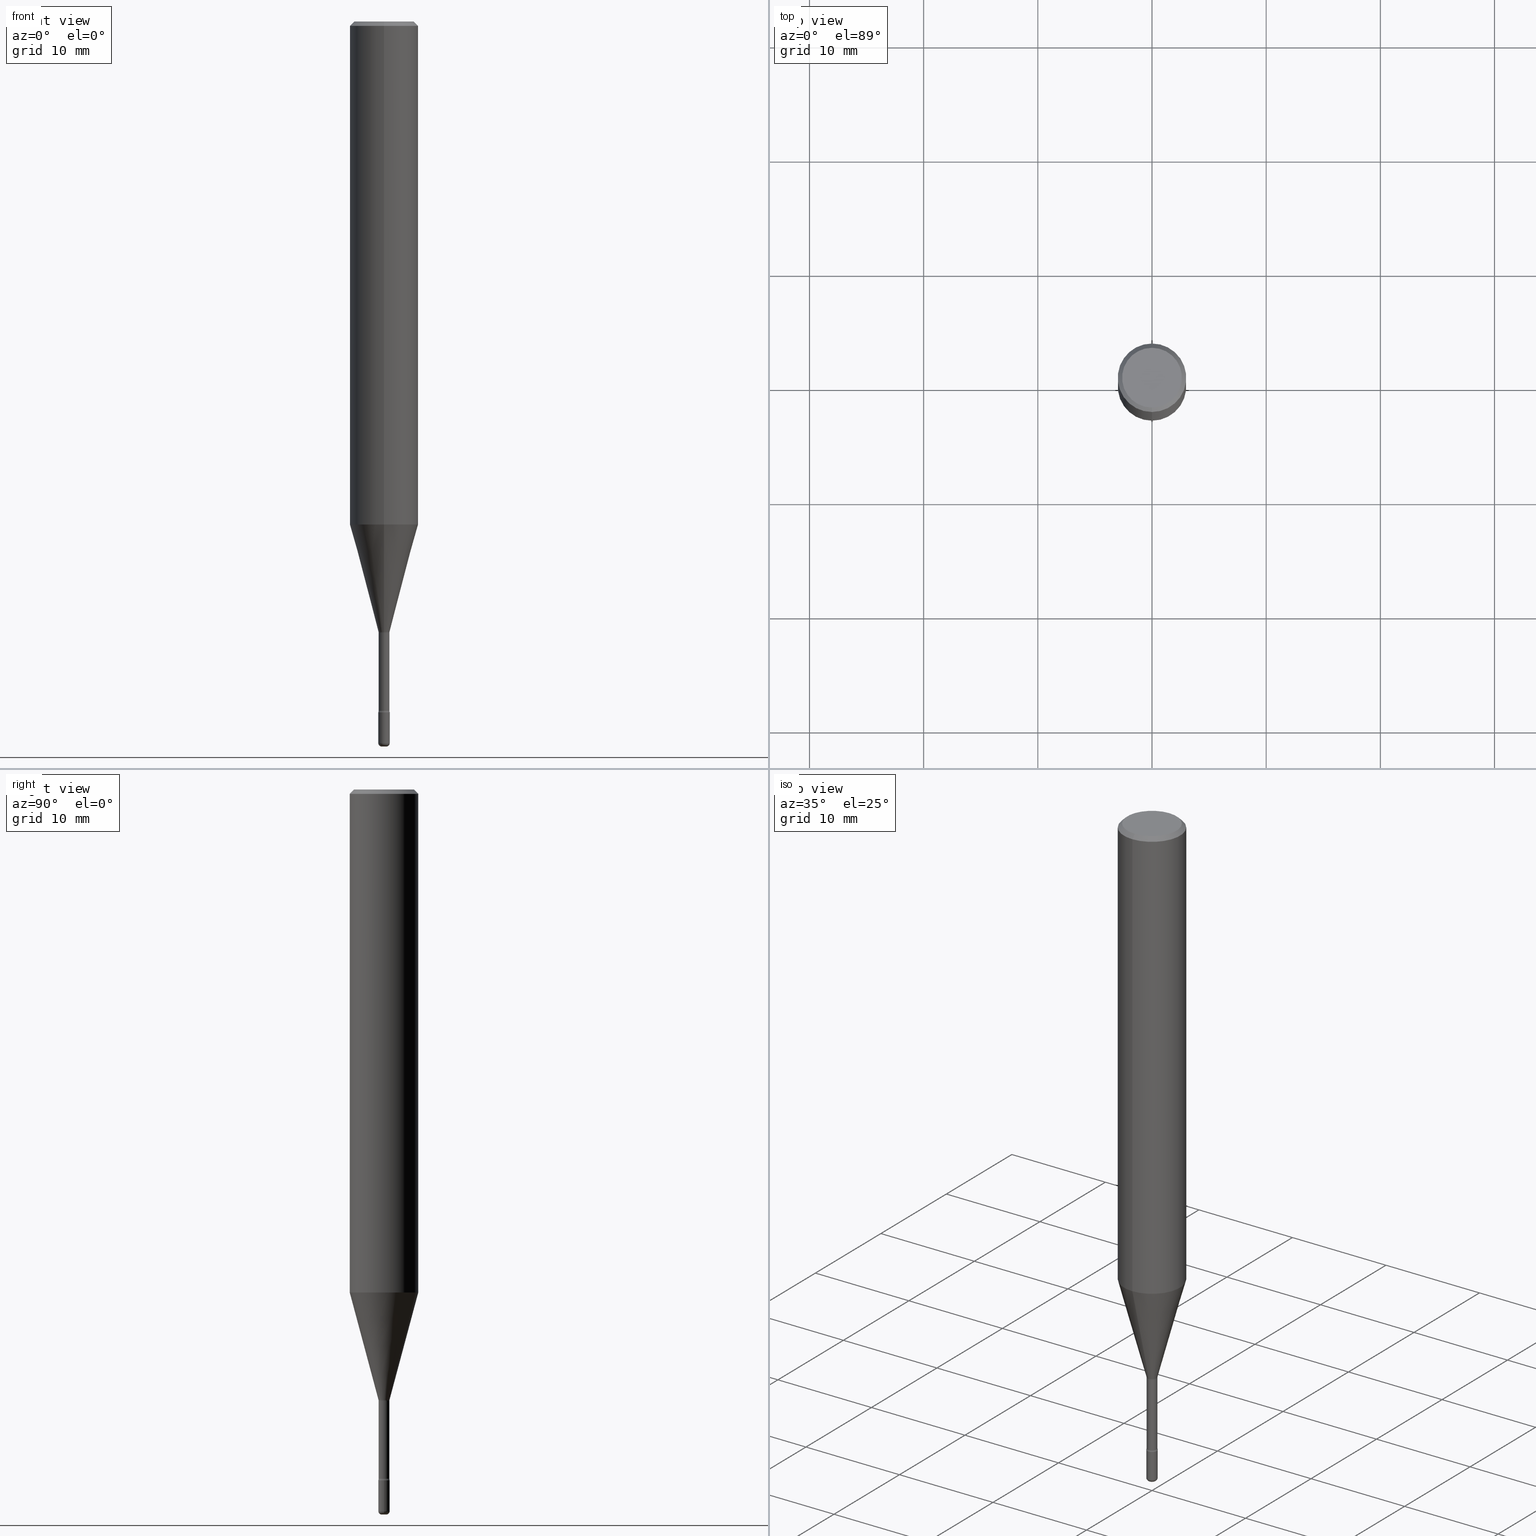
[diagram: canonical four-view strip — front | top / right | iso, engineering-drawing reading convention]
A machine part, canonical four-view strip (front | top / right | iso — engineering-drawing reading convention). The complete STEP part file that produces these views, byte-faithful:
ISO-10303-21;
HEADER;
FILE_DESCRIPTION (( 'STEP AP203' ),
    '1' );
FILE_NAME ('05331.STEP',
    '2024-03-06T20:01:58',
    ( '' ),
    ( '' ),
    'SwSTEP 2.0',
    'SolidWorks 2023',
    '' );
FILE_SCHEMA (( 'CONFIG_CONTROL_DESIGN' ));
ENDSEC;

DATA;
#1 = DIRECTION ( 'NONE',  ( 2.438088387897960049E-29, -3.491481338843145188E-15, -1.000000000000000000 ) ) ;
#2 = EDGE_CURVE ( 'NONE', #362, #465, #25, .T. ) ;
#3 = AXIS2_PLACEMENT_3D ( 'NONE', #122, #475, #239 ) ;
#4 = CARTESIAN_POINT ( 'NONE',  ( 0.01969999999999999876, -1.375643647504194363E-16, 9.606068248317991466E-31 ) ) ;
#5 = EDGE_CURVE ( 'NONE', #446, #530, #280, .T. ) ;
#6 = CARTESIAN_POINT ( 'NONE',  ( 6.084815483549856310E-29, -8.687503867309514303E-15, -2.488199999999999967 ) ) ;
#7 = CALENDAR_DATE ( 2024, 6, 3 ) ;
#8 = VECTOR ( 'NONE', #518, 39.37007874015748143 ) ;
#9 = AXIS2_PLACEMENT_3D ( 'NONE', #254, #286, #156 ) ;
#10 = CYLINDRICAL_SURFACE ( 'NONE', #107, 0.01969999999999999876 ) ;
#11 = AXIS2_PLACEMENT_3D ( 'NONE', #101, #444, #498 ) ;
#12 = CALENDAR_DATE ( 2024, 6, 3 ) ;
#13 = FACE_OUTER_BOUND ( 'NONE', #463, .T. ) ;
#14 = ADVANCED_FACE ( 'NONE', ( #255 ), #205, .T. ) ;
#15 = PERSON_AND_ORGANIZATION ( #499, #237 ) ;
#16 = CARTESIAN_POINT ( 'NONE',  ( 7.723156721521011834E-16, 0.1031000000000000111, -3.887509258146911569E-16 ) ) ;
#17 = ORIENTED_EDGE ( 'NONE', *, *, #511, .F. ) ;
#18 = CARTESIAN_POINT ( 'NONE',  ( 8.391509709326781971E-16, 0.1180999999999999966, 6.569755868572347380E-17 ) ) ;
#19 = CIRCLE ( 'NONE', #295, 0.01850000000000006500 ) ;
#20 = CARTESIAN_POINT ( 'NONE',  ( 0.007899999999999995567, -8.742669272463236971E-15, -2.488199999999999967 ) ) ;
#21 = EDGE_CURVE ( 'NONE', #236, #387, #49, .T. ) ;
#22 = DIRECTION ( 'NONE',  ( -6.982962677686265922E-15, -1.000000000000000000, 4.626330217890369336E-15 ) ) ;
#23 = ORIENTED_EDGE ( 'NONE', *, *, #443, .T. ) ;
#24 = CARTESIAN_POINT ( 'NONE',  ( 7.021496770469800463E-46, -1.005216981103814698E-31, -2.875135659208835554E-17 ) ) ;
#25 = CIRCLE ( 'NONE', #414, 0.01500000000000002720 ) ;
#26 = CIRCLE ( 'NONE', #305, 0.1180999999999999966 ) ;
#27 = ORIENTED_EDGE ( 'NONE', *, *, #374, .F. ) ;
#28 = DIRECTION ( 'NONE',  ( -6.982962677686265133E-15, -1.000000000000000000, 0.000000000000000000 ) ) ;
#29 = FACE_OUTER_BOUND ( 'NONE', #482, .T. ) ;
#30 = ORIENTED_EDGE ( 'NONE', *, *, #365, .F. ) ;
#31 = EDGE_CURVE ( 'NONE', #529, #159, #429, .T. ) ;
#32 = ORIENTED_EDGE ( 'NONE', *, *, #311, .T. ) ;
#33 = CARTESIAN_POINT ( 'NONE',  ( 5.810037713031908457E-29, -8.296475434781729585E-15, -2.376021224617320904 ) ) ;
#34 = EDGE_LOOP ( 'NONE', ( #570, #545 ) ) ;
#35 = PRODUCT_RELATED_PRODUCT_CATEGORY ( 'detail', '', ( #198 ) ) ;
#36 = ORIENTED_EDGE ( 'NONE', *, *, #200, .F. ) ;
#37 = CARTESIAN_POINT ( 'NONE',  ( 5.155720227609348946E-29, -7.361002077583396325E-15, -2.108274787463811251 ) ) ;
#38 = DIRECTION ( 'NONE',  ( -2.445280224282367565E-29, 3.491751398861325958E-15, 1.000000000000000000 ) ) ;
#39 = EDGE_LOOP ( 'NONE', ( #369, #478, #275, #245 ) ) ;
#40 = AXIS2_PLACEMENT_3D ( 'NONE', #207, #329, #125 ) ;
#41 = DIRECTION ( 'NONE',  ( -6.982962677686265922E-15, -1.000000000000000000, 3.491751398861325958E-15 ) ) ;
#42 = AXIS2_PLACEMENT_3D ( 'NONE', #6, #526, #43 ) ;
#43 = DIRECTION ( 'NONE',  ( 1.000000000000000000, -6.982962677686306154E-15, 4.883557194083126353E-29 ) ) ;
#44 = DIRECTION ( 'NONE',  ( -2.445280224282367845E-29, 3.491751398861325958E-15, 1.000000000000000000 ) ) ;
#45 = CARTESIAN_POINT ( 'NONE',  ( 5.145829368748516646E-29, -7.348015461868996732E-15, -2.104392501787273329 ) ) ;
#46 = CARTESIAN_POINT ( 'NONE',  ( -1.169113584055446105E-44, 1.669184350826100908E-30, 4.780733988912460139E-16 ) ) ;
#47 = EDGE_CURVE ( 'NONE', #525, #529, #304, .T. ) ;
#48 = LINE ( 'NONE', #85, #100 ) ;
#49 = CIRCLE ( 'NONE', #104, 0.01969999999999999876 ) ;
#50 = CIRCLE ( 'NONE', #361, 0.01850000000000006500 ) ;
#51 = DIRECTION ( 'NONE',  ( -6.982962677686263555E-15, -1.000000000000000000, 0.000000000000000000 ) ) ;
#52 = ADVANCED_FACE ( 'NONE', ( #468 ), #337, .T. ) ;
#53 = SHAPE_DEFINITION_REPRESENTATION ( #111, #138 ) ;
#54 = DIRECTION ( 'NONE',  ( -2.445280224282367845E-29, 3.491751398861325958E-15, 1.000000000000000000 ) ) ;
#55 = ORIENTED_EDGE ( 'NONE', *, *, #153, .F. ) ;
#56 = APPROVAL_STATUS ( 'not_yet_approved' ) ;
#57 = AXIS2_PLACEMENT_3D ( 'NONE', #204, #249, #424 ) ;
#58 = FACE_OUTER_BOUND ( 'NONE', #77, .T. ) ;
#59 = CONICAL_SURFACE ( 'NONE', #215, 0.1180999999999999966, 0.7853981633974480570 ) ;
#60 = COORDINATED_UNIVERSAL_TIME_OFFSET ( 5, 0, .BEHIND. ) ;
#61 = DIRECTION ( 'NONE',  ( 1.000000000000000000, -6.982962677686265922E-15, 4.876176775795935793E-29 ) ) ;
#62 = DATE_AND_TIME ( #398, #182 ) ;
#63 = ORIENTED_EDGE ( 'NONE', *, *, #222, .T. ) ;
#64 = APPROVAL_ROLE ( '' ) ;
#65 = TOROIDAL_SURFACE ( 'NONE', #183, 0.007899999999999995567, 0.01180000000000006738 ) ;
#66 = ORIENTED_EDGE ( 'NONE', *, *, #524, .T. ) ;
#67 = CARTESIAN_POINT ( 'NONE',  ( -1.169113584055446105E-44, 1.669184350826100908E-30, 4.780733988912460139E-16 ) ) ;
#68 = EDGE_LOOP ( 'NONE', ( #17, #411, #23, #454 ) ) ;
#69 = DIRECTION ( 'NONE',  ( -2.445280224282367565E-29, 3.491751398861325958E-15, 1.000000000000000000 ) ) ;
#70 = EDGE_CURVE ( 'NONE', #525, #120, #26, .T. ) ;
#71 = ORIENTED_EDGE ( 'NONE', *, *, #448, .F. ) ;
#72 = DIRECTION ( 'NONE',  ( -6.982962677686265133E-15, -1.000000000000000000, 0.000000000000000000 ) ) ;
#73 = ORIENTED_EDGE ( 'NONE', *, *, #294, .T. ) ;
#74 = TOROIDAL_SURFACE ( 'NONE', #96, 0.03349999999999999506, 0.01500000000000002373 ) ;
#75 = ORIENTED_EDGE ( 'NONE', *, *, #491, .F. ) ;
#76 = FACE_OUTER_BOUND ( 'NONE', #334, .T. ) ;
#77 = EDGE_LOOP ( 'NONE', ( #285, #206, #339, #243 ) ) ;
#78 = PRODUCT_DEFINITION ( 'UNKNOWN', '', #130, #345 ) ;
#79 = VERTEX_POINT ( 'NONE', #523 ) ;
#80 = DIRECTION ( 'NONE',  ( -2.445280224282367285E-29, 3.491751398861325958E-15, 1.000000000000000000 ) ) ;
#81 = PLANE ( 'NONE',  #484 ) ;
#82 = ORIENTED_EDGE ( 'NONE', *, *, #142, .F. ) ;
#83 = ORIENTED_EDGE ( 'NONE', *, *, #392, .T. ) ;
#84 = DIRECTION ( 'NONE',  ( -2.445280224282367565E-29, 3.491751398861325958E-15, 1.000000000000000000 ) ) ;
#85 = CARTESIAN_POINT ( 'NONE',  ( -1.291848095371961205E-16, -0.01850000000000003031, 5.426707997701807132E-16 ) ) ;
#86 = DIRECTION ( 'NONE',  ( -2.445280224282367565E-29, 3.491751398861325958E-15, 1.000000000000000000 ) ) ;
#87 = EDGE_LOOP ( 'NONE', ( #55, #540, #427, #36 ) ) ;
#88 = CIRCLE ( 'NONE', #354, 0.01499999999999997169 ) ;
#89 = EDGE_CURVE ( 'NONE', #530, #387, #213, .T. ) ;
#90 = AXIS2_PLACEMENT_3D ( 'NONE', #377, #221, #486 ) ;
#91 = FACE_OUTER_BOUND ( 'NONE', #34, .T. ) ;
#92 = DATE_TIME_ROLE ( 'classification_date' ) ;
#93 = LOCAL_TIME ( 15, 1, 58.00000000000000000, #496 ) ;
#94 = DIRECTION ( 'NONE',  ( 1.000000000000000000, -6.982962677686372418E-15, 0.000000000000000000 ) ) ;
#95 = ADVANCED_FACE ( 'NONE', ( #341 ), #347, .T. ) ;
#96 = AXIS2_PLACEMENT_3D ( 'NONE', #37, #384, #569 ) ;
#97 = DIRECTION ( 'NONE',  ( 6.982962677686265922E-15, 1.000000000000000000, -3.487819265831411744E-15 ) ) ;
#98 = SECURITY_CLASSIFICATION ( '', '', #278 ) ;
#99 = EDGE_CURVE ( 'NONE', #512, #465, #175, .T. ) ;
#100 = VECTOR ( 'NONE', #136, 39.37007874015748143 ) ;
#101 = CARTESIAN_POINT ( 'NONE',  ( 5.155322645138369044E-29, -7.361571438310827097E-15, -2.108274787463811251 ) ) ;
#102 = ORIENTED_EDGE ( 'NONE', *, *, #552, .T. ) ;
#103 = DIRECTION ( 'NONE',  ( -2.445280224282367565E-29, 3.491751398861325958E-15, 1.000000000000000000 ) ) ;
#104 = AXIS2_PLACEMENT_3D ( 'NONE', #131, #421, #127 ) ;
#105 = DIRECTION ( 'NONE',  ( 6.982962677686265922E-15, 1.000000000000000000, -3.491751398861325958E-15 ) ) ;
#106 = VECTOR ( 'NONE', #116, 39.37007874015748143 ) ;
#107 = AXIS2_PLACEMENT_3D ( 'NONE', #318, #492, #310 ) ;
#108 = DIRECTION ( 'NONE',  ( -6.982962677686265922E-15, -1.000000000000000000, 0.000000000000000000 ) ) ;
#109 = DIRECTION ( 'NONE',  ( 2.445280224282367285E-29, -3.491751398861325958E-15, -1.000000000000000000 ) ) ;
#110 = ORIENTED_EDGE ( 'NONE', *, *, #477, .T. ) ;
#111 = PRODUCT_DEFINITION_SHAPE ( 'NONE', 'NONE',  #78 ) ;
#112 = DIRECTION ( 'NONE',  ( -6.982962677686265133E-15, -1.000000000000000000, 0.000000000000000000 ) ) ;
#113 = DIRECTION ( 'NONE',  ( -2.445280224282367565E-29, 3.491751398861325958E-15, 1.000000000000000000 ) ) ;
#114 = DIRECTION ( 'NONE',  ( 7.105427357601001859E-15, 1.000000000000000000, -3.491481338843145583E-15 ) ) ;
#115 = ORIENTED_EDGE ( 'NONE', *, *, #461, .F. ) ;
#116 = DIRECTION ( 'NONE',  ( 4.937700262164546464E-15, 0.7071067811865449082, -0.7071067811865501263 ) ) ;
#117 = DIRECTION ( 'NONE',  ( -2.445468806185136597E-29, 3.491481338843145583E-15, 1.000000000000000000 ) ) ;
#118 = ORIENTED_EDGE ( 'NONE', *, *, #563, .F. ) ;
#119 = AXIS2_PLACEMENT_3D ( 'NONE', #274, #355, #190 ) ;
#120 = VERTEX_POINT ( 'NONE', #219 ) ;
#121 = CARTESIAN_POINT ( 'NONE',  ( -8.246878922347475723E-16, -0.1181000000000000522, -0.01499999999999961607 ) ) ;
#122 = CARTESIAN_POINT ( 'NONE',  ( 5.824412966218171832E-29, -8.317002656947792603E-15, -2.381899999999999906 ) ) ;
#123 = ORIENTED_EDGE ( 'NONE', *, *, #5, .F. ) ;
#124 = ORIENTED_EDGE ( 'NONE', *, *, #456, .F. ) ;
#125 = DIRECTION ( 'NONE',  ( -6.982962677686265133E-15, -1.000000000000000000, 0.000000000000000000 ) ) ;
#126 = DIRECTION ( 'NONE',  ( -2.445280224282367565E-29, 3.491751398861325958E-15, 1.000000000000000000 ) ) ;
#127 = DIRECTION ( 'NONE',  ( 1.000000000000000000, -6.982962677686278543E-15, 0.000000000000000000 ) ) ;
#128 = ADVANCED_FACE ( 'NONE', ( #91 ), #388, .T. ) ;
#129 = ORIENTED_EDGE ( 'NONE', *, *, #330, .F. ) ;
#130 = PRODUCT_DEFINITION_FORMATION_WITH_SPECIFIED_SOURCE ( 'ANY', '', #198, .NOT_KNOWN. ) ;
#131 = CARTESIAN_POINT ( 'NONE',  ( 5.824862149452377611E-29, -8.316359400990489234E-15, -2.381899999999999906 ) ) ;
#132 = CONICAL_SURFACE ( 'NONE', #431, 0.01901111260566398092, 0.2617993877991499629 ) ;
#133 = CIRCLE ( 'NONE', #349, 0.01901111260566398092 ) ;
#134 = APPROVAL_STATUS ( 'not_yet_approved' ) ;
#135 = EDGE_CURVE ( 'NONE', #408, #529, #290, .T. ) ;
#136 = DIRECTION ( 'NONE',  ( -2.445280224282367845E-29, 3.491751398861325958E-15, 1.000000000000000000 ) ) ;
#137 = APPROVAL ( #134, 'UNSPECIFIED' ) ;
#138 = ADVANCED_BREP_SHAPE_REPRESENTATION ( '05331', ( #528, #319, #383 ), #348 ) ;
#139 = APPROVAL_PERSON_ORGANIZATION ( #312, #494, #281 ) ;
#140 = VECTOR ( 'NONE', #44, 39.37007874015748143 ) ;
#141 = MECHANICAL_CONTEXT ( 'NONE', #242, 'mechanical' ) ;
#142 = EDGE_CURVE ( 'NONE', #328, #408, #553, .T. ) ;
#143 = APPLICATION_PROTOCOL_DEFINITION ( 'international standard', 'config_control_design', 1994, #242 ) ;
#144 = CC_DESIGN_APPROVAL ( #333, ( #130 ) ) ;
#145 = CARTESIAN_POINT ( 'NONE',  ( -1.375643647503610605E-16, -0.01970000000000829421, -2.381899999999999906 ) ) ;
#146 = CALENDAR_DATE ( 2024, 6, 3 ) ;
#147 = CIRCLE ( 'NONE', #40, 0.01969999999999999876 ) ;
#148 = DIRECTION ( 'NONE',  ( 1.000000000000000000, -6.982962677686306154E-15, 4.883557194083126353E-29 ) ) ;
#149 = ORIENTED_EDGE ( 'NONE', *, *, #89, .T. ) ;
#150 = DATE_AND_TIME ( #401, #313 ) ;
#151 = ADVANCED_FACE ( 'NONE', ( #485 ), #59, .T. ) ;
#152 = COORDINATED_UNIVERSAL_TIME_OFFSET ( 5, 0, .BEHIND. ) ;
#153 = EDGE_CURVE ( 'NONE', #362, #457, #133, .T. ) ;
#154 = LINE ( 'NONE', #322, #106 ) ;
#155 = CLOSED_SHELL ( 'NONE', ( #173, #357, #211, #368, #95, #497, #378, #488, #151, #389, #537, #308, #14, #466 ) ) ;
#156 = DIRECTION ( 'NONE',  ( 1.000000000000000000, -6.982962677686372418E-15, 0.000000000000000000 ) ) ;
#157 = AXIS2_PLACEMENT_3D ( 'NONE', #292, #522, #212 ) ;
#158 = AXIS2_PLACEMENT_3D ( 'NONE', #390, #535, #532 ) ;
#159 = VERTEX_POINT ( 'NONE', #436 ) ;
#160 = DIRECTION ( 'NONE',  ( 1.000000000000000000, -6.982962677686229634E-15, 0.000000000000000000 ) ) ;
#161 =( NAMED_UNIT ( * ) SI_UNIT ( $, .STERADIAN. ) SOLID_ANGLE_UNIT ( ) );
#162 = CC_DESIGN_PERSON_AND_ORGANIZATION_ASSIGNMENT ( #356, #407, ( #130 ) ) ;
#163 = EDGE_LOOP ( 'NONE', ( #500, #344, #63, #71 ) ) ;
#164 = DIRECTION ( 'NONE',  ( -6.982962677686265922E-15, -1.000000000000000000, 3.491751398861325958E-15 ) ) ;
#165 = ORIENTED_EDGE ( 'NONE', *, *, #31, .F. ) ;
#166 = CARTESIAN_POINT ( 'NONE',  ( 5.155322645138369044E-29, -7.361571438310827097E-15, -2.108274787463811251 ) ) ;
#167 = DIRECTION ( 'NONE',  ( -6.982962677686267499E-15, -1.000000000000000000, 0.000000000000000000 ) ) ;
#168 = DIRECTION ( 'NONE',  ( -6.982962677686265922E-15, -1.000000000000000000, 3.487819265831411744E-15 ) ) ;
#169 = VECTOR ( 'NONE', #515, 39.37007874015748854 ) ;
#170 = ORIENTED_EDGE ( 'NONE', *, *, #400, .T. ) ;
#171 = CARTESIAN_POINT ( 'NONE',  ( 1.399769189447978324E-16, 0.01969999999999166515, -2.381899999999999906 ) ) ;
#172 = CARTESIAN_POINT ( 'NONE',  ( -0.01969999999999999876, 1.399769189447397278E-16, -9.690302127802162501E-31 ) ) ;
#173 = ADVANCED_FACE ( 'NONE', ( #220 ), #397, .F. ) ;
#174 = EDGE_LOOP ( 'NONE', ( #170, #149, #565, #375 ) ) ;
#175 = LINE ( 'NONE', #433, #140 ) ;
#176 = DIRECTION ( 'NONE',  ( -1.000000000000000000, 6.982962677686265922E-15, -4.876176775795935793E-29 ) ) ;
#177 = EDGE_CURVE ( 'NONE', #79, #342, #48, .T. ) ;
#178 = CIRCLE ( 'NONE', #3, 0.01969999999999999876 ) ;
#179 = TOROIDAL_SURFACE ( 'NONE', #42, 0.007899999999999995567, 0.01180000000000006738 ) ;
#180 = PERSON_AND_ORGANIZATION ( #499, #237 ) ;
#181 = DIRECTION ( 'NONE',  ( -2.445468806185136877E-29, 3.491481338843145188E-15, 1.000000000000000000 ) ) ;
#182 = LOCAL_TIME ( 15, 1, 58.00000000000000000, #194 ) ;
#183 = AXIS2_PLACEMENT_3D ( 'NONE', #238, #270, #148 ) ;
#184 = DIRECTION ( 'NONE',  ( 7.105427357600997914E-15, 1.000000000000000000, 0.000000000000000000 ) ) ;
#185 = ORIENTED_EDGE ( 'NONE', *, *, #21, .T. ) ;
#186 = DATE_AND_TIME ( #12, #346 ) ;
#187 = CARTESIAN_POINT ( 'NONE',  ( 6.084815483549856310E-29, -8.687503867309514303E-15, -2.488199999999999967 ) ) ;
#188 = EDGE_CURVE ( 'NONE', #216, #446, #460, .T. ) ;
#189 = VECTOR ( 'NONE', #54, 39.37007874015748143 ) ;
#190 = DIRECTION ( 'NONE',  ( -6.982962677686266711E-15, -1.000000000000000000, 3.491751398861325564E-15 ) ) ;
#191 = ORIENTED_EDGE ( 'NONE', *, *, #365, .T. ) ;
#192 = DATE_TIME_ROLE ( 'creation_date' ) ;
#193 = CARTESIAN_POINT ( 'NONE',  ( -8.102248135368174406E-16, -0.1181000000000000522, -0.01499999999999961607 ) ) ;
#194 = COORDINATED_UNIVERSAL_TIME_OFFSET ( 5, 0, .BEHIND. ) ;
#195 = CYLINDRICAL_SURFACE ( 'NONE', #450, 0.1180999999999999966 ) ;
#196 =( NAMED_UNIT ( * ) PLANE_ANGLE_UNIT ( ) SI_UNIT ( $, .RADIAN. ) );
#197 = ORIENTED_EDGE ( 'NONE', *, *, #47, .T. ) ;
#198 = PRODUCT ( '05331', '05331', '', ( #141 ) ) ;
#199 = CARTESIAN_POINT ( 'NONE',  ( 4.871165252697454148E-16, 0.01901111260565663263, -2.104392501787273329 ) ) ;
#200 = EDGE_CURVE ( 'NONE', #457, #342, #533, .T. ) ;
#201 = AXIS2_PLACEMENT_3D ( 'NONE', #343, #218, #432 ) ;
#202 = EDGE_LOOP ( 'NONE', ( #566, #469, #508, #291 ) ) ;
#203 = CARTESIAN_POINT ( 'NONE',  ( 3.667920336423558407E-31, -5.237627098291998527E-17, -0.01500000000000002720 ) ) ;
#204 = CARTESIAN_POINT ( 'NONE',  ( 5.824862149452377611E-29, -8.316359400990489234E-15, -2.381899999999999906 ) ) ;
#205 = CYLINDRICAL_SURFACE ( 'NONE', #223, 0.01850000000000003031 ) ;
#206 = ORIENTED_EDGE ( 'NONE', *, *, #524, .F. ) ;
#207 = CARTESIAN_POINT ( 'NONE',  ( 5.824412966218171832E-29, -8.317002656947792603E-15, -2.381899999999999906 ) ) ;
#208 = CARTESIAN_POINT ( 'NONE',  ( -2.339292497024320265E-16, -0.03350000000000832867, -2.376021224617320904 ) ) ;
#209 = EDGE_LOOP ( 'NONE', ( #422, #379, #256, #252 ) ) ;
#210 = ORIENTED_EDGE ( 'NONE', *, *, #258, .T. ) ;
#211 = ADVANCED_FACE ( 'NONE', ( #226 ), #228, .F. ) ;
#212 = DIRECTION ( 'NONE',  ( 6.982962677686265922E-15, 1.000000000000000000, -3.487819265831411744E-15 ) ) ;
#213 = LINE ( 'NONE', #172, #324 ) ;
#214 = CIRCLE ( 'NONE', #57, 0.01969999999999999876 ) ;
#215 = AXIS2_PLACEMENT_3D ( 'NONE', #350, #439, #97 ) ;
#216 = VERTEX_POINT ( 'NONE', #393 ) ;
#217 = CARTESIAN_POINT ( 'NONE',  ( 7.021496770469800463E-46, -1.005216981103814698E-31, -2.875135659208835554E-17 ) ) ;
#218 = DIRECTION ( 'NONE',  ( -2.445280224282367565E-29, 3.491751398861325958E-15, 1.000000000000000000 ) ) ;
#219 = CARTESIAN_POINT ( 'NONE',  ( 8.391509709327204011E-16, 0.1180999999999939182, -1.734587739566141096 ) ) ;
#220 = FACE_OUTER_BOUND ( 'NONE', #87, .T. ) ;
#221 = DIRECTION ( 'NONE',  ( -2.445468806185136597E-29, 3.491481338843145583E-15, 1.000000000000000000 ) ) ;
#222 = EDGE_CURVE ( 'NONE', #287, #236, #340, .T. ) ;
#223 = AXIS2_PLACEMENT_3D ( 'NONE', #46, #250, #425 ) ;
#224 = CIRCLE ( 'NONE', #521, 0.1031000000000000111 ) ;
#225 = CC_DESIGN_PERSON_AND_ORGANIZATION_ASSIGNMENT ( #458, #549, ( #78 ) ) ;
#226 = FACE_OUTER_BOUND ( 'NONE', #548, .T. ) ;
#227 = CIRCLE ( 'NONE', #9, 0.007899999999999997302 ) ;
#228 = TOROIDAL_SURFACE ( 'NONE', #201, 0.03350000000000002975, 0.01499999999999996822 ) ;
#229 = DIRECTION ( 'NONE',  ( 1.000000000000000000, -7.105427357601001070E-15, 4.926318815823450324E-29 ) ) ;
#230 = APPLICATION_PROTOCOL_DEFINITION ( 'international standard', 'config_control_design', 1994, #426 ) ;
#231 = CARTESIAN_POINT ( 'NONE',  ( 2.380318164796918536E-16, 0.03349999999999173778, -2.376021224617320904 ) ) ;
#232 = ADVANCED_FACE ( 'NONE', ( #351 ), #179, .T. ) ;
#233 = DIMENSIONAL_EXPONENTS ( 1.000000000000000000, 0.000000000000000000, 0.000000000000000000, 0.000000000000000000, 0.000000000000000000, 0.000000000000000000, 0.000000000000000000 ) ;
#234 = APPROVAL_DATE_TIME ( #62, #494 ) ;
#235 = CC_DESIGN_PERSON_AND_ORGANIZATION_ASSIGNMENT ( #15, #364, ( #98 ) ) ;
#236 = VERTEX_POINT ( 'NONE', #394 ) ;
#237 = ORGANIZATION ( 'UNSPECIFIED', 'UNSPECIFIED', '' ) ;
#238 = CARTESIAN_POINT ( 'NONE',  ( 6.084815483549856310E-29, -8.687503867309514303E-15, -2.488199999999999967 ) ) ;
#239 = DIRECTION ( 'NONE',  ( -6.982962677686265133E-15, -1.000000000000000000, 0.000000000000000000 ) ) ;
#240 = ORIENTED_EDGE ( 'NONE', *, *, #177, .F. ) ;
#241 = FACE_OUTER_BOUND ( 'NONE', #493, .T. ) ;
#242 = APPLICATION_CONTEXT ( 'configuration controlled 3d designs of mechanical parts and assemblies' ) ;
#243 = ORIENTED_EDGE ( 'NONE', *, *, #374, .T. ) ;
#244 = DIRECTION ( 'NONE',  ( -2.445280224282367565E-29, 3.491751398861325958E-15, 1.000000000000000000 ) ) ;
#245 = ORIENTED_EDGE ( 'NONE', *, *, #443, .F. ) ;
#246 = CONICAL_SURFACE ( 'NONE', #157, 0.1180999999999999966, 0.7853981633974480570 ) ;
#247 = AXIS2_PLACEMENT_3D ( 'NONE', #20, #360, #404 ) ;
#248 = ORIENTED_EDGE ( 'NONE', *, *, #294, .F. ) ;
#249 = DIRECTION ( 'NONE',  ( -2.445468806185136597E-29, 3.491481338843145583E-15, 1.000000000000000000 ) ) ;
#250 = DIRECTION ( 'NONE',  ( -2.445280224282367565E-29, 3.491751398861325958E-15, 1.000000000000000000 ) ) ;
#251 = ADVANCED_FACE ( 'NONE', ( #316 ), #10, .T. ) ;
#252 = ORIENTED_EDGE ( 'NONE', *, *, #539, .F. ) ;
#253 = PLANE ( 'NONE',  #567 ) ;
#254 = CARTESIAN_POINT ( 'NONE',  ( 6.113672015462842613E-29, -8.728703347107864943E-15, -2.500000000000000000 ) ) ;
#255 = FACE_OUTER_BOUND ( 'NONE', #209, .T. ) ;
#256 = ORIENTED_EDGE ( 'NONE', *, *, #177, .T. ) ;
#257 = CARTESIAN_POINT ( 'NONE',  ( -8.246878922347057627E-16, -0.1181000000000060751, -1.734587739566140430 ) ) ;
#258 = EDGE_CURVE ( 'NONE', #216, #287, #434, .T. ) ;
#259 = DIRECTION ( 'NONE',  ( -2.445280224282367565E-29, 3.491751398861325958E-15, 1.000000000000000000 ) ) ;
#260 = AXIS2_PLACEMENT_3D ( 'NONE', #502, #453, #61 ) ;
#261 = ORIENTED_EDGE ( 'NONE', *, *, #135, .F. ) ;
#262 = DIRECTION ( 'NONE',  ( -6.982962677686265922E-15, -1.000000000000000000, 3.491751398861325958E-15 ) ) ;
#263 = VERTEX_POINT ( 'NONE', #145 ) ;
#264 = UNCERTAINTY_MEASURE_WITH_UNIT (LENGTH_MEASURE( 1.000000000000000082E-05 ), #555, 'distance_accuracy_value', 'NONE');
#265 = DIRECTION ( 'NONE',  ( -2.445280224282367565E-29, 3.491751398861325958E-15, 1.000000000000000000 ) ) ;
#266 = DATE_AND_TIME ( #7, #503 ) ;
#267 = CARTESIAN_POINT ( 'NONE',  ( -2.339292497024383374E-16, -0.03350000000000735723, -2.108274787463811251 ) ) ;
#268 = CIRCLE ( 'NONE', #338, 0.1180999999999999966 ) ;
#269 = APPROVAL_STATUS ( 'not_yet_approved' ) ;
#270 = DIRECTION ( 'NONE',  ( -2.445468806185136597E-29, 3.491481338843145583E-15, 1.000000000000000000 ) ) ;
#271 = AXIS2_PLACEMENT_3D ( 'NONE', #203, #366, #550 ) ;
#272 = DIRECTION ( 'NONE',  ( 1.000000000000000000, 0.000000000000000000, 0.000000000000000000 ) ) ;
#273 = VECTOR ( 'NONE', #181, 39.37007874015748143 ) ;
#274 = CARTESIAN_POINT ( 'NONE',  ( 5.810485787635465130E-29, -8.295833766446612990E-15, -2.376021224617320904 ) ) ;
#275 = ORIENTED_EDGE ( 'NONE', *, *, #70, .F. ) ;
#276 = ADVANCED_FACE ( 'NONE', ( #13 ), #320, .T. ) ;
#277 = ORIENTED_EDGE ( 'NONE', *, *, #552, .F. ) ;
#278 = SECURITY_CLASSIFICATION_LEVEL ( 'unclassified' ) ;
#279 = APPROVAL_DATE_TIME ( #266, #137 ) ;
#280 = CIRCLE ( 'NONE', #353, 0.01180000000000006738 ) ;
#281 = APPROVAL_ROLE ( '' ) ;
#282 = CIRCLE ( 'NONE', #459, 0.01901111260566398092 ) ;
#283 = CARTESIAN_POINT ( 'NONE',  ( -1.327538897865910147E-16, -0.01901111260567132921, -2.104392501787273329 ) ) ;
#284 = ADVANCED_FACE ( 'NONE', ( #395 ), #65, .T. ) ;
#285 = ORIENTED_EDGE ( 'NONE', *, *, #311, .F. ) ;
#286 = DIRECTION ( 'NONE',  ( -2.445468806185136597E-29, 3.491481338843145583E-15, 1.000000000000000000 ) ) ;
#287 = VERTEX_POINT ( 'NONE', #449 ) ;
#288 = FACE_OUTER_BOUND ( 'NONE', #476, .T. ) ;
#289 = DIRECTION ( 'NONE',  ( -1.807323732225328167E-15, -0.2588190451025179084, 0.9659258262890690894 ) ) ;
#290 = LINE ( 'NONE', #193, #416 ) ;
#291 = ORIENTED_EDGE ( 'NONE', *, *, #258, .F. ) ;
#292 = CARTESIAN_POINT ( 'NONE',  ( 3.667920336423558407E-31, -5.237627098291998527E-17, -0.01500000000000002720 ) ) ;
#293 = EDGE_LOOP ( 'NONE', ( #326, #303, #300, #73 ) ) ;
#294 = EDGE_CURVE ( 'NONE', #342, #465, #507, .T. ) ;
#295 = AXIS2_PLACEMENT_3D ( 'NONE', #33, #244, #420 ) ;
#296 = ORIENTED_EDGE ( 'NONE', *, *, #306, .T. ) ;
#297 = CC_DESIGN_DATE_AND_TIME_ASSIGNMENT ( #315, #92, ( #98 ) ) ;
#298 = DIRECTION ( 'NONE',  ( -6.982962677686265133E-15, -1.000000000000000000, 3.491751398861325958E-15 ) ) ;
#299 = EDGE_LOOP ( 'NONE', ( #406, #191 ) ) ;
#300 = ORIENTED_EDGE ( 'NONE', *, *, #200, .T. ) ;
#301 = DIRECTION ( 'NONE',  ( -2.445280224282367565E-29, 3.491751398861325958E-15, 1.000000000000000000 ) ) ;
#302 = CARTESIAN_POINT ( 'NONE',  ( 4.241553096843737534E-29, -6.056749166077777869E-15, -1.734587739566140652 ) ) ;
#303 = ORIENTED_EDGE ( 'NONE', *, *, #321, .F. ) ;
#304 = LINE ( 'NONE', #527, #8 ) ;
#305 = AXIS2_PLACEMENT_3D ( 'NONE', #302, #259, #385 ) ;
#306 = EDGE_CURVE ( 'NONE', #120, #159, #541, .T. ) ;
#307 = CARTESIAN_POINT ( 'NONE',  ( 6.113672015462842613E-29, -8.728703347107864943E-15, -2.500000000000000000 ) ) ;
#308 = ADVANCED_FACE ( 'NONE', ( #58 ), #442, .F. ) ;
#309 = CIRCLE ( 'NONE', #396, 0.01969999999999999876 ) ;
#310 = DIRECTION ( 'NONE',  ( 1.000000000000000000, -6.982962677686265922E-15, 4.876176775795935232E-29 ) ) ;
#311 = EDGE_CURVE ( 'NONE', #512, #473, #88, .T. ) ;
#312 = PERSON_AND_ORGANIZATION ( #499, #237 ) ;
#313 = LOCAL_TIME ( 15, 1, 58.00000000000000000, #60 ) ;
#314 = CIRCLE ( 'NONE', #371, 0.01499999999999996302 ) ;
#315 = DATE_AND_TIME ( #146, #93 ) ;
#316 = FACE_OUTER_BOUND ( 'NONE', #163, .T. ) ;
#317 = ORIENTED_EDGE ( 'NONE', *, *, #563, .T. ) ;
#318 = CARTESIAN_POINT ( 'NONE',  ( 0.000000000000000000, 0.000000000000000000, 0.000000000000000000 ) ) ;
#319 = MANIFOLD_SOLID_BREP ( 'Body-Move/Copy2[2]', #155 ) ;
#320 = PLANE ( 'NONE',  #260 ) ;
#321 = EDGE_CURVE ( 'NONE', #457, #362, #282, .T. ) ;
#322 = CARTESIAN_POINT ( 'NONE',  ( 8.246878922347483612E-16, 0.1180999999999999411, -0.01500000000000044006 ) ) ;
#323 = AXIS2_PLACEMENT_3D ( 'NONE', #517, #117, #505 ) ;
#324 = VECTOR ( 'NONE', #560, 39.37007874015748143 ) ;
#325 = DIRECTION ( 'NONE',  ( -6.982962677686265922E-15, -1.000000000000000000, 3.491751398861325958E-15 ) ) ;
#326 = ORIENTED_EDGE ( 'NONE', *, *, #2, .F. ) ;
#327 = CARTESIAN_POINT ( 'NONE',  ( -7.587710785535310407E-16, -0.1031000000000000111, 3.312482126305143595E-16 ) ) ;
#328 = VERTEX_POINT ( 'NONE', #16 ) ;
#329 = DIRECTION ( 'NONE',  ( -2.445280224282367565E-29, 3.491751398861325958E-15, 1.000000000000000000 ) ) ;
#330 = EDGE_CURVE ( 'NONE', #530, #287, #309, .T. ) ;
#331 = FACE_OUTER_BOUND ( 'NONE', #299, .T. ) ;
#332 = CARTESIAN_POINT ( 'NONE',  ( 2.380318164796850989E-16, 0.03349999999999263983, -2.108274787463811251 ) ) ;
#333 = APPROVAL ( #56, 'UNSPECIFIED' ) ;
#334 = EDGE_LOOP ( 'NONE', ( #30, #382, #554, #118 ) ) ;
#335 = CARTESIAN_POINT ( 'NONE',  ( 1.350820796067695411E-16, 0.01901111260565663263, -2.104392501787273329 ) ) ;
#336 = FACE_OUTER_BOUND ( 'NONE', #293, .T. ) ;
#337 = CYLINDRICAL_SURFACE ( 'NONE', #90, 0.01969999999999999876 ) ;
#338 = AXIS2_PLACEMENT_3D ( 'NONE', #462, #417, #22 ) ;
#339 = ORIENTED_EDGE ( 'NONE', *, *, #461, .T. ) ;
#340 = LINE ( 'NONE', #4, #273 ) ;
#341 = FACE_OUTER_BOUND ( 'NONE', #557, .T. ) ;
#342 = VERTEX_POINT ( 'NONE', #380 ) ;
#343 = CARTESIAN_POINT ( 'NONE',  ( 5.810485787635465130E-29, -8.295833766446612990E-15, -2.376021224617320904 ) ) ;
#344 = ORIENTED_EDGE ( 'NONE', *, *, #330, .T. ) ;
#345 = DESIGN_CONTEXT ( 'detailed design', #426, 'design' ) ;
#346 = LOCAL_TIME ( 15, 1, 58.00000000000000000, #152 ) ;
#347 = CYLINDRICAL_SURFACE ( 'NONE', #451, 0.1180999999999999966 ) ;
#348 =( GEOMETRIC_REPRESENTATION_CONTEXT ( 3 ) GLOBAL_UNCERTAINTY_ASSIGNED_CONTEXT ( ( #264 ) ) GLOBAL_UNIT_ASSIGNED_CONTEXT ( ( #555, #196, #161 ) ) REPRESENTATION_CONTEXT ( 'NONE', 'WORKASPACE' ) );
#349 = AXIS2_PLACEMENT_3D ( 'NONE', #45, #126, #480 ) ;
#350 = CARTESIAN_POINT ( 'NONE',  ( 3.667920336423558407E-31, -5.237627098291998527E-17, -0.01500000000000002720 ) ) ;
#351 = FACE_OUTER_BOUND ( 'NONE', #415, .T. ) ;
#352 = APPROVAL_PERSON_ORGANIZATION ( #447, #333, #64 ) ;
#353 = AXIS2_PLACEMENT_3D ( 'NONE', #472, #114, #437 ) ;
#354 = AXIS2_PLACEMENT_3D ( 'NONE', #231, #229, #184 ) ;
#355 = DIRECTION ( 'NONE',  ( -2.445280224282367565E-29, 3.491751398861325958E-15, 1.000000000000000000 ) ) ;
#356 = PERSON_AND_ORGANIZATION ( #499, #237 ) ;
#357 = ADVANCED_FACE ( 'NONE', ( #241 ), #413, .T. ) ;
#358 = APPROVAL_PERSON_ORGANIZATION ( #180, #137, #455 ) ;
#359 = CARTESIAN_POINT ( 'NONE',  ( 0.000000000000000000, 0.000000000000000000, 0.000000000000000000 ) ) ;
#360 = DIRECTION ( 'NONE',  ( -6.982962677686266711E-15, -1.000000000000000000, 3.491481338843145583E-15 ) ) ;
#361 = AXIS2_PLACEMENT_3D ( 'NONE', #479, #84, #108 ) ;
#362 = VERTEX_POINT ( 'NONE', #199 ) ;
#363 = ORIENTED_EDGE ( 'NONE', *, *, #47, .F. ) ;
#364 = PERSON_AND_ORGANIZATION_ROLE ( 'classification_officer' ) ;
#365 = EDGE_CURVE ( 'NONE', #408, #328, #224, .T. ) ;
#366 = DIRECTION ( 'NONE',  ( -2.445280224282367565E-29, 3.491751398861325958E-15, 1.000000000000000000 ) ) ;
#367 = CARTESIAN_POINT ( 'NONE',  ( -1.169113584055446105E-44, 1.669184350826100908E-30, 4.780733988912460139E-16 ) ) ;
#368 = ADVANCED_FACE ( 'NONE', ( #76 ), #246, .T. ) ;
#369 = ORIENTED_EDGE ( 'NONE', *, *, #321, .T. ) ;
#370 = LENGTH_MEASURE_WITH_UNIT ( LENGTH_MEASURE( 0.02539999999999999897 ), #412 );
#371 = AXIS2_PLACEMENT_3D ( 'NONE', #208, #564, #167 ) ;
#372 = AXIS2_PLACEMENT_3D ( 'NONE', #217, #265, #262 ) ;
#373 = DIRECTION ( 'NONE',  ( -6.982962677686265922E-15, -1.000000000000000000, 3.491751398861325958E-15 ) ) ;
#374 = EDGE_CURVE ( 'NONE', #263, #473, #178, .T. ) ;
#375 = ORIENTED_EDGE ( 'NONE', *, *, #222, .F. ) ;
#376 = DIRECTION ( 'NONE',  ( -2.445280224282367565E-29, 3.491751398861325958E-15, 1.000000000000000000 ) ) ;
#377 = CARTESIAN_POINT ( 'NONE',  ( 0.000000000000000000, 0.000000000000000000, 0.000000000000000000 ) ) ;
#378 = ADVANCED_FACE ( 'NONE', ( #410 ), #132, .T. ) ;
#379 = ORIENTED_EDGE ( 'NONE', *, *, #456, .T. ) ;
#380 = CARTESIAN_POINT ( 'NONE',  ( -1.291848095371443269E-16, -0.01850000000000735778, -2.108274787463811251 ) ) ;
#381 = CARTESIAN_POINT ( 'NONE',  ( 3.667920336423558407E-31, -5.237627098291998527E-17, -0.01500000000000002720 ) ) ;
#382 = ORIENTED_EDGE ( 'NONE', *, *, #135, .T. ) ;
#383 = AXIS2_PLACEMENT_3D ( 'NONE', #359, #546, #272 ) ;
#384 = DIRECTION ( 'NONE',  ( -2.445280224282367565E-29, 3.491751398861325958E-15, 1.000000000000000000 ) ) ;
#385 = DIRECTION ( 'NONE',  ( -6.982962677686265922E-15, -1.000000000000000000, 4.626330217890369336E-15 ) ) ;
#386 = AXIS2_PLACEMENT_3D ( 'NONE', #391, #1, #176 ) ;
#387 = VERTEX_POINT ( 'NONE', #556 ) ;
#388 = PLANE ( 'NONE',  #386 ) ;
#389 = ADVANCED_FACE ( 'NONE', ( #331 ), #81, .F. ) ;
#390 = CARTESIAN_POINT ( 'NONE',  ( 5.155720227609348946E-29, -7.361002077583396325E-15, -2.108274787463811251 ) ) ;
#391 = CARTESIAN_POINT ( 'NONE',  ( 5.516540515378261548E-17, 0.007899999999991268174, -2.500000000000000000 ) ) ;
#392 = EDGE_CURVE ( 'NONE', #446, #216, #227, .T. ) ;
#393 = CARTESIAN_POINT ( 'NONE',  ( 0.007899999999999997302, -8.783868752261587611E-15, -2.500000000000000000 ) ) ;
#394 = CARTESIAN_POINT ( 'NONE',  ( 0.01969999999999999876, -8.453923765740908448E-15, -2.381899999999999906 ) ) ;
#395 = FACE_OUTER_BOUND ( 'NONE', #202, .T. ) ;
#396 = AXIS2_PLACEMENT_3D ( 'NONE', #187, #543, #160 ) ;
#397 = TOROIDAL_SURFACE ( 'NONE', #158, 0.03349999999999999506, 0.01500000000000002373 ) ;
#398 = CALENDAR_DATE ( 2024, 6, 3 ) ;
#399 = CARTESIAN_POINT ( 'NONE',  ( 5.145829368748516646E-29, -7.348015461868996732E-15, -2.104392501787273329 ) ) ;
#400 = EDGE_CURVE ( 'NONE', #287, #530, #470, .T. ) ;
#401 = CALENDAR_DATE ( 2024, 6, 3 ) ;
#402 = DIRECTION ( 'NONE',  ( -6.982962677686265133E-15, -1.000000000000000000, 0.000000000000000000 ) ) ;
#403 = PERSON_AND_ORGANIZATION_ROLE ( 'creator' ) ;
#404 = DIRECTION ( 'NONE',  ( 1.000000000000000000, -6.982962677686342441E-15, 0.000000000000000000 ) ) ;
#405 = AXIS2_PLACEMENT_3D ( 'NONE', #474, #301, #112 ) ;
#406 = ORIENTED_EDGE ( 'NONE', *, *, #142, .T. ) ;
#407 = PERSON_AND_ORGANIZATION_ROLE ( 'design_supplier' ) ;
#408 = VERTEX_POINT ( 'NONE', #327 ) ;
#409 = PERSON_AND_ORGANIZATION ( #499, #237 ) ;
#410 = FACE_OUTER_BOUND ( 'NONE', #68, .T. ) ;
#411 = ORIENTED_EDGE ( 'NONE', *, *, #153, .T. ) ;
#412 =( LENGTH_UNIT ( ) NAMED_UNIT ( * ) SI_UNIT ( $, .METRE. ) );
#413 = CYLINDRICAL_SURFACE ( 'NONE', #495, 0.01850000000000003031 ) ;
#414 = AXIS2_PLACEMENT_3D ( 'NONE', #332, #572, #418 ) ;
#415 = EDGE_LOOP ( 'NONE', ( #123, #83, #210, #129 ) ) ;
#416 = VECTOR ( 'NONE', #430, 39.37007874015748143 ) ;
#417 = DIRECTION ( 'NONE',  ( -2.445280224282367565E-29, 3.491751398861325958E-15, 1.000000000000000000 ) ) ;
#418 = DIRECTION ( 'NONE',  ( 7.105427357601000281E-15, 1.000000000000000000, 0.000000000000000000 ) ) ;
#419 = ORIENTED_EDGE ( 'NONE', *, *, #448, .T. ) ;
#420 = DIRECTION ( 'NONE',  ( -6.982962677686265922E-15, -1.000000000000000000, 0.000000000000000000 ) ) ;
#421 = DIRECTION ( 'NONE',  ( -2.445468806185136597E-29, 3.491481338843145583E-15, 1.000000000000000000 ) ) ;
#422 = ORIENTED_EDGE ( 'NONE', *, *, #99, .F. ) ;
#423 = DIRECTION ( 'NONE',  ( -2.445280224282367565E-29, 3.491751398861325958E-15, 1.000000000000000000 ) ) ;
#424 = DIRECTION ( 'NONE',  ( 1.000000000000000000, -6.982962677686278543E-15, 0.000000000000000000 ) ) ;
#425 = DIRECTION ( 'NONE',  ( -6.982962677686265133E-15, -1.000000000000000000, 3.491751398861325958E-15 ) ) ;
#426 = APPLICATION_CONTEXT ( 'configuration controlled 3d designs of mechanical parts and assemblies' ) ;
#427 = ORIENTED_EDGE ( 'NONE', *, *, #539, .T. ) ;
#428 = CARTESIAN_POINT ( 'NONE',  ( 1.375643647504776887E-16, 0.01969999999999168250, -2.381899999999999906 ) ) ;
#429 = CIRCLE ( 'NONE', #504, 0.1180999999999999966 ) ;
#430 = DIRECTION ( 'NONE',  ( -4.851104656540962697E-15, -0.7071067811865497932, -0.7071067811865452413 ) ) ;
#431 = AXIS2_PLACEMENT_3D ( 'NONE', #467, #113, #72 ) ;
#432 = DIRECTION ( 'NONE',  ( -6.982962677686266711E-15, -1.000000000000000000, 3.491751398861325564E-15 ) ) ;
#433 = CARTESIAN_POINT ( 'NONE',  ( 1.314504061156187251E-16, 0.01850000000000003031, 4.134759980123114133E-16 ) ) ;
#434 = CIRCLE ( 'NONE', #247, 0.01180000000000006738 ) ;
#435 = ORIENTED_EDGE ( 'NONE', *, *, #491, .T. ) ;
#436 = CARTESIAN_POINT ( 'NONE',  ( 8.391509709327210914E-16, 0.1180999999999999689, -0.01500000000000044006 ) ) ;
#437 = DIRECTION ( 'NONE',  ( -1.000000000000000000, 7.105427357601039724E-15, 0.000000000000000000 ) ) ;
#438 = CC_DESIGN_PERSON_AND_ORGANIZATION_ASSIGNMENT ( #409, #452, ( #198 ) ) ;
#439 = DIRECTION ( 'NONE',  ( 2.445280224282367565E-29, -3.491751398861325958E-15, -1.000000000000000000 ) ) ;
#440 = DIRECTION ( 'NONE',  ( -1.000000000000000000, 6.982962677686265922E-15, -4.883557194083112340E-29 ) ) ;
#441 = CC_DESIGN_DATE_AND_TIME_ASSIGNMENT ( #150, #192, ( #78 ) ) ;
#442 = TOROIDAL_SURFACE ( 'NONE', #119, 0.03350000000000002975, 0.01499999999999996822 ) ;
#443 = EDGE_CURVE ( 'NONE', #457, #525, #513, .T. ) ;
#444 = DIRECTION ( 'NONE',  ( -2.445280224282367565E-29, 3.491751398861325958E-15, 1.000000000000000000 ) ) ;
#445 = CC_DESIGN_SECURITY_CLASSIFICATION ( #98, ( #130 ) ) ;
#446 = VERTEX_POINT ( 'NONE', #559 ) ;
#447 = PERSON_AND_ORGANIZATION ( #499, #237 ) ;
#448 = EDGE_CURVE ( 'NONE', #387, #236, #214, .T. ) ;
#449 = CARTESIAN_POINT ( 'NONE',  ( 0.01970000000000002999, -8.825068232059935095E-15, -2.488199999999999967 ) ) ;
#450 = AXIS2_PLACEMENT_3D ( 'NONE', #367, #376, #325 ) ;
#451 = AXIS2_PLACEMENT_3D ( 'NONE', #481, #86, #164 ) ;
#452 = PERSON_AND_ORGANIZATION_ROLE ( 'design_owner' ) ;
#453 = DIRECTION ( 'NONE',  ( -2.438088387897960049E-29, 3.491481338843145188E-15, 1.000000000000000000 ) ) ;
#454 = ORIENTED_EDGE ( 'NONE', *, *, #477, .F. ) ;
#455 = APPROVAL_ROLE ( '' ) ;
#456 = EDGE_CURVE ( 'NONE', #512, #79, #19, .T. ) ;
#457 = VERTEX_POINT ( 'NONE', #283 ) ;
#458 = PERSON_AND_ORGANIZATION ( #499, #237 ) ;
#459 = AXIS2_PLACEMENT_3D ( 'NONE', #399, #103, #402 ) ;
#460 = CIRCLE ( 'NONE', #487, 0.007899999999999997302 ) ;
#461 = EDGE_CURVE ( 'NONE', #79, #263, #314, .T. ) ;
#462 = CARTESIAN_POINT ( 'NONE',  ( 4.241553096843737534E-29, -6.056749166077777869E-15, -1.734587739566140652 ) ) ;
#463 = EDGE_LOOP ( 'NONE', ( #185, #419 ) ) ;
#464 = DIRECTION ( 'NONE',  ( -2.445280224282367565E-29, 3.491751398861325958E-15, 1.000000000000000000 ) ) ;
#465 = VERTEX_POINT ( 'NONE', #551 ) ;
#466 = ADVANCED_FACE ( 'NONE', ( #336 ), #74, .F. ) ;
#467 = CARTESIAN_POINT ( 'NONE',  ( 5.145829368748516646E-29, -7.348015461868996732E-15, -2.104392501787273329 ) ) ;
#468 = FACE_OUTER_BOUND ( 'NONE', #174, .T. ) ;
#469 = ORIENTED_EDGE ( 'NONE', *, *, #5, .T. ) ;
#470 = CIRCLE ( 'NONE', #323, 0.01969999999999999876 ) ;
#471 = CARTESIAN_POINT ( 'NONE',  ( -1.327538897865910147E-16, -0.01901111260567132921, -2.104392501787273329 ) ) ;
#472 = CARTESIAN_POINT ( 'NONE',  ( -0.007899999999999995567, -8.631370991184467837E-15, -2.488199999999999967 ) ) ;
#473 = VERTEX_POINT ( 'NONE', #171 ) ;
#474 = CARTESIAN_POINT ( 'NONE',  ( 5.145829368748516646E-29, -7.348015461868996732E-15, -2.104392501787273329 ) ) ;
#475 = DIRECTION ( 'NONE',  ( -2.445280224282367565E-29, 3.491751398861325958E-15, 1.000000000000000000 ) ) ;
#476 = EDGE_LOOP ( 'NONE', ( #27, #75 ) ) ;
#477 = EDGE_CURVE ( 'NONE', #120, #525, #268, .T. ) ;
#478 = ORIENTED_EDGE ( 'NONE', *, *, #511, .T. ) ;
#479 = CARTESIAN_POINT ( 'NONE',  ( 5.810037713031908457E-29, -8.296475434781729585E-15, -2.376021224617320904 ) ) ;
#480 = DIRECTION ( 'NONE',  ( -6.982962677686265133E-15, -1.000000000000000000, 0.000000000000000000 ) ) ;
#481 = CARTESIAN_POINT ( 'NONE',  ( -1.169113584055446105E-44, 1.669184350826100908E-30, 4.780733988912460139E-16 ) ) ;
#482 = EDGE_LOOP ( 'NONE', ( #514, #110, #197, #277 ) ) ;
#483 = CLOSED_SHELL ( 'NONE', ( #52, #284, #276, #128, #232, #251 ) ) ;
#484 = AXIS2_PLACEMENT_3D ( 'NONE', #510, #109, #105 ) ;
#485 = FACE_OUTER_BOUND ( 'NONE', #561, .T. ) ;
#486 = DIRECTION ( 'NONE',  ( 1.000000000000000000, -6.982962677686265922E-15, 4.876176775795935232E-29 ) ) ;
#487 = AXIS2_PLACEMENT_3D ( 'NONE', #307, #489, #94 ) ;
#488 = ADVANCED_FACE ( 'NONE', ( #29 ), #195, .T. ) ;
#489 = DIRECTION ( 'NONE',  ( -2.445468806185136597E-29, 3.491481338843145583E-15, 1.000000000000000000 ) ) ;
#490 = CIRCLE ( 'NONE', #271, 0.1180999999999999966 ) ;
#491 = EDGE_CURVE ( 'NONE', #473, #263, #147, .T. ) ;
#492 = DIRECTION ( 'NONE',  ( -2.445468806185136597E-29, 3.491481338843145583E-15, 1.000000000000000000 ) ) ;
#493 = EDGE_LOOP ( 'NONE', ( #66, #571, #248, #240 ) ) ;
#494 = APPROVAL ( #269, 'UNSPECIFIED' ) ;
#495 = AXIS2_PLACEMENT_3D ( 'NONE', #67, #464, #298 ) ;
#496 = COORDINATED_UNIVERSAL_TIME_OFFSET ( 5, 0, .BEHIND. ) ;
#497 = ADVANCED_FACE ( 'NONE', ( #509 ), #568, .T. ) ;
#498 = DIRECTION ( 'NONE',  ( -6.982962677686265133E-15, -1.000000000000000000, 0.000000000000000000 ) ) ;
#499 = PERSON ( 'UNSPECIFIED', 'UNSPECIFIED', 'UNSPECIFIED', ('UNSPECIFIED'), ('UNSPECIFIED'), ('UNSPECIFIED') ) ;
#500 = ORIENTED_EDGE ( 'NONE', *, *, #89, .F. ) ;
#501 = APPROVAL_DATE_TIME ( #186, #333 ) ;
#502 = CARTESIAN_POINT ( 'NONE',  ( 5.824862149452377611E-29, -8.316359400990489234E-15, -2.381899999999999906 ) ) ;
#503 = LOCAL_TIME ( 15, 1, 58.00000000000000000, #547 ) ;
#504 = AXIS2_PLACEMENT_3D ( 'NONE', #381, #38, #168 ) ;
#505 = DIRECTION ( 'NONE',  ( 1.000000000000000000, -6.982962677686229634E-15, 0.000000000000000000 ) ) ;
#506 = CC_DESIGN_APPROVAL ( #494, ( #78 ) ) ;
#507 = CIRCLE ( 'NONE', #11, 0.01849999999999999908 ) ;
#508 = ORIENTED_EDGE ( 'NONE', *, *, #400, .F. ) ;
#509 = FACE_OUTER_BOUND ( 'NONE', #39, .T. ) ;
#510 = CARTESIAN_POINT ( 'NONE',  ( 7.199434520694541042E-16, 0.1031000000000000111, -1.353385480730238890E-16 ) ) ;
#511 = EDGE_CURVE ( 'NONE', #362, #120, #520, .T. ) ;
#512 = VERTEX_POINT ( 'NONE', #562 ) ;
#513 = LINE ( 'NONE', #471, #544 ) ;
#514 = ORIENTED_EDGE ( 'NONE', *, *, #306, .F. ) ;
#515 = DIRECTION ( 'NONE',  ( 1.839019923739597949E-15, 0.2588190451025246253, 0.9659258262890670910 ) ) ;
#516 = CC_DESIGN_APPROVAL ( #137, ( #98 ) ) ;
#517 = CARTESIAN_POINT ( 'NONE',  ( 6.084815483549856310E-29, -8.687503867309514303E-15, -2.488199999999999967 ) ) ;
#518 = DIRECTION ( 'NONE',  ( -2.445280224282367845E-29, 3.491751398861325958E-15, 1.000000000000000000 ) ) ;
#519 = ORIENTED_EDGE ( 'NONE', *, *, #70, .T. ) ;
#520 = LINE ( 'NONE', #335, #169 ) ;
#521 = AXIS2_PLACEMENT_3D ( 'NONE', #24, #69, #373 ) ;
#522 = DIRECTION ( 'NONE',  ( 2.445280224282367565E-29, -3.491751398861325958E-15, -1.000000000000000000 ) ) ;
#523 = CARTESIAN_POINT ( 'NONE',  ( -1.291848095371382625E-16, -0.01850000000000836045, -2.376021224617320904 ) ) ;
#524 = EDGE_CURVE ( 'NONE', #79, #512, #50, .T. ) ;
#525 = VERTEX_POINT ( 'NONE', #257 ) ;
#526 = DIRECTION ( 'NONE',  ( -2.445468806185136597E-29, 3.491481338843145583E-15, 1.000000000000000000 ) ) ;
#527 = CARTESIAN_POINT ( 'NONE',  ( -8.246878922347479668E-16, -0.1180999999999999966, 8.904492390967687020E-16 ) ) ;
#528 = MANIFOLD_SOLID_BREP ( 'Body-Move/Copy2[1]', #483 ) ;
#529 = VERTEX_POINT ( 'NONE', #121 ) ;
#530 = VERTEX_POINT ( 'NONE', #558 ) ;
#531 = AXIS2_PLACEMENT_3D ( 'NONE', #166, #423, #28 ) ;
#532 = DIRECTION ( 'NONE',  ( -6.982962677686265133E-15, -1.000000000000000000, 3.491751398861325958E-15 ) ) ;
#533 = CIRCLE ( 'NONE', #538, 0.01500000000000002720 ) ;
#534 = CC_DESIGN_PERSON_AND_ORGANIZATION_ASSIGNMENT ( #542, #403, ( #130 ) ) ;
#535 = DIRECTION ( 'NONE',  ( -2.445280224282367565E-29, 3.491751398861325958E-15, 1.000000000000000000 ) ) ;
#536 = CIRCLE ( 'NONE', #531, 0.01849999999999999908 ) ;
#537 = ADVANCED_FACE ( 'NONE', ( #288 ), #253, .F. ) ;
#538 = AXIS2_PLACEMENT_3D ( 'NONE', #267, #440, #51 ) ;
#539 = EDGE_CURVE ( 'NONE', #465, #342, #536, .T. ) ;
#540 = ORIENTED_EDGE ( 'NONE', *, *, #2, .T. ) ;
#541 = LINE ( 'NONE', #18, #189 ) ;
#542 = PERSON_AND_ORGANIZATION ( #499, #237 ) ;
#543 = DIRECTION ( 'NONE',  ( -2.445468806185136597E-29, 3.491481338843145583E-15, 1.000000000000000000 ) ) ;
#544 = VECTOR ( 'NONE', #289, 39.37007874015748143 ) ;
#545 = ORIENTED_EDGE ( 'NONE', *, *, #392, .F. ) ;
#546 = DIRECTION ( 'NONE',  ( 0.000000000000000000, 0.000000000000000000, 1.000000000000000000 ) ) ;
#547 = COORDINATED_UNIVERSAL_TIME_OFFSET ( 5, 0, .BEHIND. ) ;
#548 = EDGE_LOOP ( 'NONE', ( #124, #32, #435, #115 ) ) ;
#549 = PERSON_AND_ORGANIZATION_ROLE ( 'creator' ) ;
#550 = DIRECTION ( 'NONE',  ( -6.982962677686265922E-15, -1.000000000000000000, 3.487819265831411744E-15 ) ) ;
#551 = CARTESIAN_POINT ( 'NONE',  ( 1.314504061156767557E-16, 0.01849999999999263692, -2.108274787463811251 ) ) ;
#552 = EDGE_CURVE ( 'NONE', #159, #529, #490, .T. ) ;
#553 = CIRCLE ( 'NONE', #372, 0.1031000000000000111 ) ;
#554 = ORIENTED_EDGE ( 'NONE', *, *, #31, .T. ) ;
#555 =( CONVERSION_BASED_UNIT ( 'INCH', #370 ) LENGTH_UNIT ( ) NAMED_UNIT ( #233 ) );
#556 = CARTESIAN_POINT ( 'NONE',  ( -0.01969999999999999876, -8.361954715205262460E-15, -2.381899999999999906 ) ) ;
#557 = EDGE_LOOP ( 'NONE', ( #519, #296, #165, #363 ) ) ;
#558 = CARTESIAN_POINT ( 'NONE',  ( -0.01970000000000002999, -8.547526948364774205E-15, -2.488199999999999967 ) ) ;
#559 = CARTESIAN_POINT ( 'NONE',  ( -0.007899999999999997302, -8.610048709673794763E-15, -2.500000000000000000 ) ) ;
#560 = DIRECTION ( 'NONE',  ( -2.445468806185136877E-29, 3.491481338843145188E-15, 1.000000000000000000 ) ) ;
#561 = EDGE_LOOP ( 'NONE', ( #261, #82, #317, #102 ) ) ;
#562 = CARTESIAN_POINT ( 'NONE',  ( 1.357136625302374296E-16, 0.01849999999999176956, -2.376021224617320904 ) ) ;
#563 = EDGE_CURVE ( 'NONE', #328, #159, #154, .T. ) ;
#564 = DIRECTION ( 'NONE',  ( -1.000000000000000000, 6.982962677686265922E-15, -4.883557194083112340E-29 ) ) ;
#565 = ORIENTED_EDGE ( 'NONE', *, *, #21, .F. ) ;
#566 = ORIENTED_EDGE ( 'NONE', *, *, #188, .T. ) ;
#567 = AXIS2_PLACEMENT_3D ( 'NONE', #428, #80, #41 ) ;
#568 = CONICAL_SURFACE ( 'NONE', #405, 0.01901111260566398092, 0.2617993877991499629 ) ;
#569 = DIRECTION ( 'NONE',  ( -6.982962677686265133E-15, -1.000000000000000000, 3.491751398861325958E-15 ) ) ;
#570 = ORIENTED_EDGE ( 'NONE', *, *, #188, .F. ) ;
#571 = ORIENTED_EDGE ( 'NONE', *, *, #99, .T. ) ;
#572 = DIRECTION ( 'NONE',  ( 1.000000000000000000, -7.105427357601001070E-15, 4.926318815823450324E-29 ) ) ;
ENDSEC;
END-ISO-10303-21;
